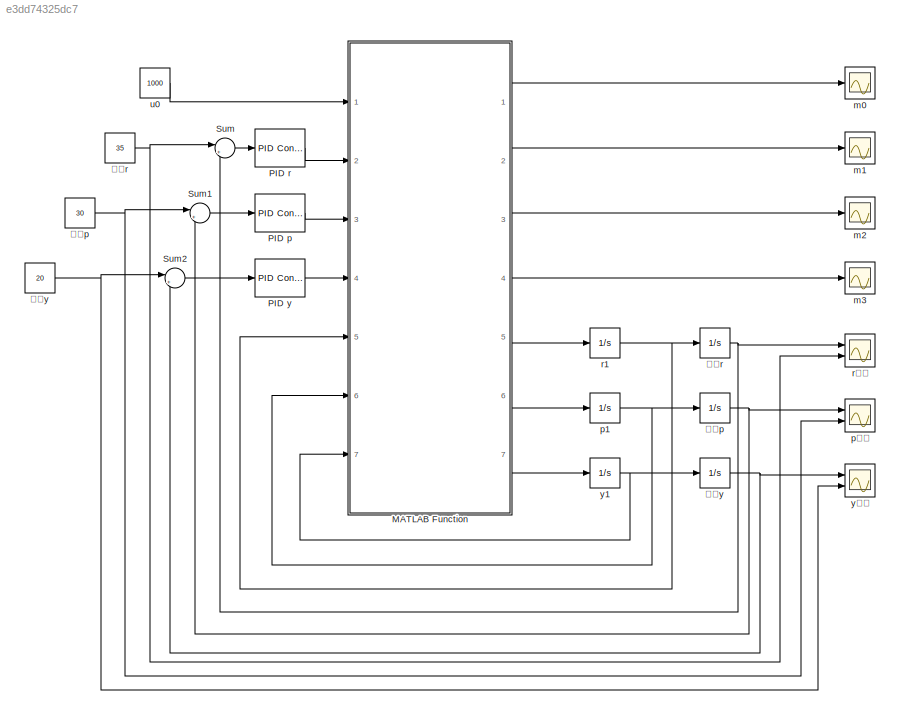
MODEL slx_e3dd74325dc7
KIND model
CONFIG AbsTol = auto
CONFIG EnableMultiTasking = off
CONFIG FixedStep = 0.001
CONFIG MaxStep = auto
CONFIG MinStep = auto
CONFIG RelTol = 1e-3
CONFIG SampleTimeConstraint = Unconstrained
CONFIG Solver = ode4
CONFIG SolverName = ode4
CONFIG StartTime = 0.0
CONFIG StopTime = 40
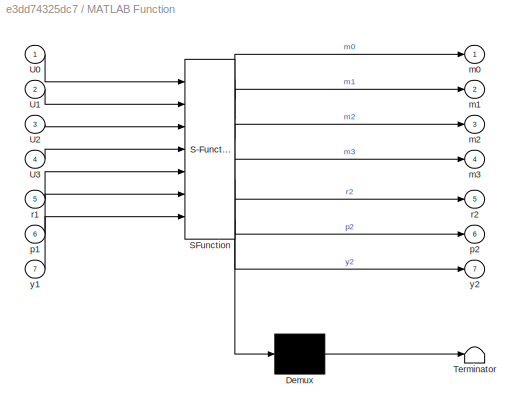
BLOCK [SubSystem] MATLAB Function
  ErrorFcn = Stateflow.Translate.translate
  PermitHierarchicalResolution = ExplicitOnly
  Ports = [7, 7]
  RequestExecContextInheritance = off
  SFBlockType = MATLAB Function
  TreatAsAtomicUnit = on
  Variant = off
BLOCK [Demux] MATLAB Function/ Demux 
  Outputs = 1
  Ports = [1, 1]
BLOCK [S-Function] MATLAB Function/ SFunction 
  EnableBusSupport = on
  FunctionName = sf_sfun
  PortCounts = [7 8]
  Ports = [7, 8]
  SFcnIsStateOwnerBlock = off
  SFunctionDeploymentMode = off
  Tag = Stateflow S-Function uav_dan 2
BLOCK [Terminator] MATLAB Function/ Terminator 
BLOCK [Inport] MATLAB Function/U0
  IconDisplay = Port number
BLOCK [Inport] MATLAB Function/U1
  IconDisplay = Port number
  Port = 2
BLOCK [Inport] MATLAB Function/U2
  IconDisplay = Port number
  Port = 3
BLOCK [Inport] MATLAB Function/U3
  IconDisplay = Port number
  Port = 4
BLOCK [Outport] MATLAB Function/m0
  IconDisplay = Port number
BLOCK [Outport] MATLAB Function/m1
  IconDisplay = Port number
  Port = 2
BLOCK [Outport] MATLAB Function/m2
  IconDisplay = Port number
  Port = 3
BLOCK [Outport] MATLAB Function/m3
  IconDisplay = Port number
  Port = 4
BLOCK [Inport] MATLAB Function/p1
  IconDisplay = Port number
  Port = 6
BLOCK [Outport] MATLAB Function/p2
  IconDisplay = Port number
  Port = 6
BLOCK [Inport] MATLAB Function/r1
  IconDisplay = Port number
  Port = 5
BLOCK [Outport] MATLAB Function/r2
  IconDisplay = Port number
  Port = 5
BLOCK [Inport] MATLAB Function/y1
  IconDisplay = Port number
  Port = 7
BLOCK [Outport] MATLAB Function/y2
  IconDisplay = Port number
  Port = 7
BLOCK [Reference] PID p  REF=simulink/Continuous/PID Controller
  Ports = [1, 1]
  SourceBlock = simulink/Continuous/PID Controller
  SourceType = PID 1dof
BLOCK [Reference] PID r  REF=simulink/Continuous/PID Controller
  Ports = [1, 1]
  SourceBlock = simulink/Continuous/PID Controller
  SourceType = PID 1dof
BLOCK [Reference] PID y  REF=simulink/Continuous/PID Controller
  Ports = [1, 1]
  SourceBlock = simulink/Continuous/PID Controller
  SourceType = PID 1dof
BLOCK [Sum] Sum
  IconShape = round
  InputSameDT = off
  Inputs = |+-
  OutDataTypeStr = Inherit: Inherit via internal rule
  Ports = [2, 1]
  SaturateOnIntegerOverflow = off
BLOCK [Sum] Sum1
  IconShape = round
  InputSameDT = off
  Inputs = |+-
  OutDataTypeStr = Inherit: Inherit via internal rule
  Ports = [2, 1]
  SaturateOnIntegerOverflow = off
BLOCK [Sum] Sum2
  IconShape = round
  InputSameDT = off
  Inputs = |+-
  OutDataTypeStr = Inherit: Inherit via internal rule
  Ports = [2, 1]
  SaturateOnIntegerOverflow = off
BLOCK [Scope] m0
  NumInputPorts = 1
  Ports = [1]
  ScopeSpecificationString = Simulink.scopes.TimeScopeBlockCfg('CurrentConfiguration', extmgr.ConfigurationSet(extmgr.Configuration('Core','General UI',true,'DisplayFullSourceName',true),extmgr.Configuration('Core','Source UI',true),extmgr.Configuration('Sources','WiredSimulink',true,'DataLoggingSaveFormat','Array','DataLoggingDecimation','1','DataLoggingDecimateData',true,'DataLoggingVariableName','ScopeData5'),extmgr.Config...<+1578ch>
BLOCK [Scope] m1
  NumInputPorts = 1
  Ports = [1]
  ScopeSpecificationString = Simulink.scopes.TimeScopeBlockCfg('CurrentConfiguration', extmgr.ConfigurationSet(extmgr.Configuration('Core','General UI',true,'DisplayFullSourceName',true),extmgr.Configuration('Core','Source UI',true),extmgr.Configuration('Sources','WiredSimulink',true,'DataLoggingSaveFormat','Array','DataLoggingDecimation','1','DataLoggingDecimateData',true,'DataLoggingVariableName','ScopeData6'),extmgr.Config...<+1577ch>
BLOCK [Scope] m2
  NumInputPorts = 1
  Ports = [1]
  ScopeSpecificationString = Simulink.scopes.TimeScopeBlockCfg('CurrentConfiguration', extmgr.ConfigurationSet(extmgr.Configuration('Core','General UI',true,'DisplayFullSourceName',true),extmgr.Configuration('Core','Source UI',true),extmgr.Configuration('Sources','WiredSimulink',true,'DataLoggingSaveFormat','Array','DataLoggingDecimation','1','DataLoggingDecimateData',true,'DataLoggingVariableName','ScopeData4'),extmgr.Config...<+1578ch>
BLOCK [Scope] m3
  NumInputPorts = 1
  Ports = [1]
  ScopeSpecificationString = Simulink.scopes.TimeScopeBlockCfg('CurrentConfiguration', extmgr.ConfigurationSet(extmgr.Configuration('Core','General UI',true,'DisplayFullSourceName',true),extmgr.Configuration('Core','Source UI',true),extmgr.Configuration('Sources','WiredSimulink',true,'DataLoggingSaveFormat','Array','DataLoggingDecimation','1','DataLoggingDecimateData',true,'DataLoggingVariableName','ScopeData3'),extmgr.Config...<+1578ch>
BLOCK [Integrator] p1
  Ports = [1, 1]
BLOCK [Scope] p图像
  NumInputPorts = 2
  Ports = [2]
  ScopeSpecificationString = Simulink.scopes.TimeScopeBlockCfg('CurrentConfiguration', extmgr.ConfigurationSet(extmgr.Configuration('Core','General UI',true,'FigureColor',[1 1 1]),extmgr.Configuration('Core','Source UI',true),extmgr.Configuration('Sources','WiredSimulink',true,'DataLoggingVariableName','ScopeData2','DataLoggingDecimation','1'),extmgr.Configuration('Visuals','Time Domain',true,'InputProcessing','FrameProcessin...<+1552ch>
BLOCK [Integrator] r1
  Ports = [1, 1]
BLOCK [Scope] r图像
  NumInputPorts = 2
  Ports = [2]
  ScopeSpecificationString = Simulink.scopes.TimeScopeBlockCfg('CurrentConfiguration', extmgr.ConfigurationSet(extmgr.Configuration('Core','General UI',true,'FigureColor',[1 1 1]),extmgr.Configuration('Core','Source UI',true),extmgr.Configuration('Sources','WiredSimulink',true,'DataLoggingVariableName','ScopeData1','DataLoggingDecimation','1'),extmgr.Configuration('Visuals','Time Domain',true,'InputProcessing','FrameProcessin...<+1590ch>
BLOCK [Constant] u0
  Value = 1000
BLOCK [Integrator] y1
  Ports = [1, 1]
BLOCK [Scope] y图像
  NumInputPorts = 2
  Ports = [2]
  ScopeSpecificationString = Simulink.scopes.TimeScopeBlockCfg('CurrentConfiguration', extmgr.ConfigurationSet(extmgr.Configuration('Core','General UI',true,'FigureColor',[1 1 1]),extmgr.Configuration('Core','Source UI',true),extmgr.Configuration('Sources','WiredSimulink',true,'DataLoggingVariableName','ScopeData3','DataLoggingDecimation','1'),extmgr.Configuration('Visuals','Time Domain',true,'InputProcessing','FrameProcessin...<+1581ch>
BLOCK [Constant] 期望p
  Value = 30
BLOCK [Constant] 期望r
  Value = 35
BLOCK [Constant] 期望y
  Value = 20
BLOCK [Integrator] 输出p
  Ports = [1, 1]
BLOCK [Integrator] 输出r
  Ports = [1, 1]
BLOCK [Integrator] 输出y
  Ports = [1, 1]
LINE MATLAB Function:1 -> m0:1
LINE MATLAB Function:2 -> m1:1
LINE MATLAB Function:3 -> m2:1
LINE MATLAB Function:4 -> m3:1
LINE MATLAB Function:5 -> r1:1
LINE MATLAB Function:6 -> p1:1
LINE MATLAB Function:7 -> y1:1
LINE PID p:1 -> MATLAB Function:3
LINE PID r:1 -> MATLAB Function:2
LINE PID y:1 -> MATLAB Function:4
LINE Sum1:1 -> PID p:1
LINE Sum2:1 -> PID y:1
LINE Sum:1 -> PID r:1
NET p1:1 -> MATLAB Function:6, 输出p:1
NET r1:1 -> MATLAB Function:5, 输出r:1
LINE u0:1 -> MATLAB Function:1
NET y1:1 -> MATLAB Function:7, 输出y:1
NET 期望p:1 -> Sum1:1, p图像:2
NET 期望r:1 -> Sum:1, r图像:2
NET 期望y:1 -> Sum2:1, y图像:2
NET 输出p:1 -> Sum1:2, p图像:1
NET 输出r:1 -> Sum:2, r图像:1
NET 输出y:1 -> Sum2:2, y图像:1
note: NET lines group one-source signal fan-out (src -> all destinations, sorted); 1:1 wires keep LINE
CHART MATLAB Function states=1 transitions=1
  STATE_LABEL 'eML_blk_kernel()'
  STATE_LABEL 'SCRIPT:\nfunction [m0, m1, m2, m3, r2, p2, y2] = fcn(U0, U1, U2, U3, r1, p1, y1)\nl = 0.23;\nIx = 0.00482;\nIy = 0.00482;\nIz = 0.01865;\n\n\nr2  = (l*U1 + p1*y1*(Ix - Iz))/Iy;\np2  = (l*U2 + r1*y1*(Iz - Iy))/Ix;\ny2  = (U3 + r1*y1*(Iy - Ix))/Iz;\n\n\nm0 = U0 + U1 - U2 - U3;%%左前\nm1 = U0 - U1 - U2 + U3;%%右前\nm2 = U0 + U1 + U2 + U3;%%左后\nm3 = U0 - U1 + U2 - U3;%%右后\n\nend'
